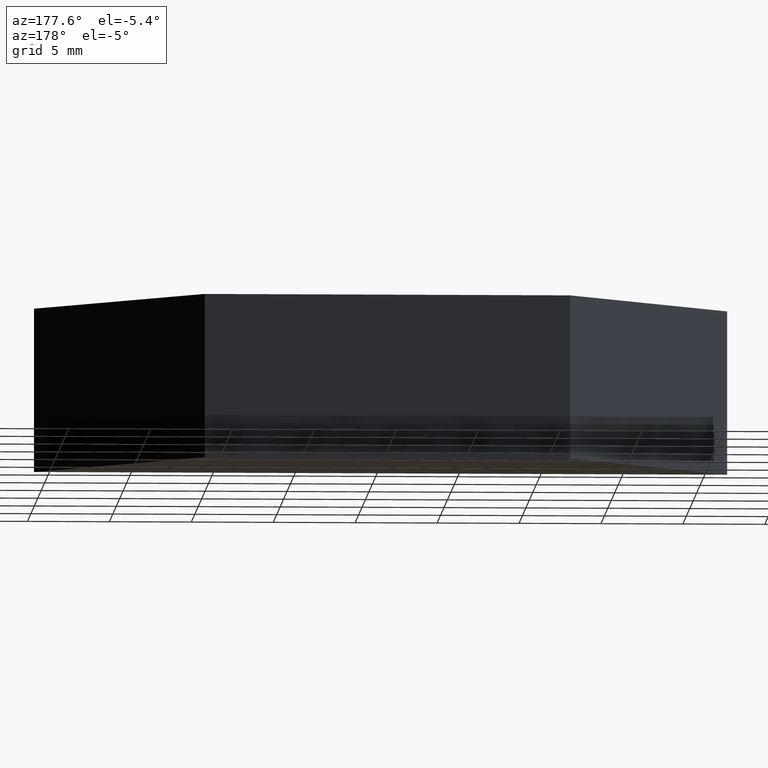
[diagram: clean part render]
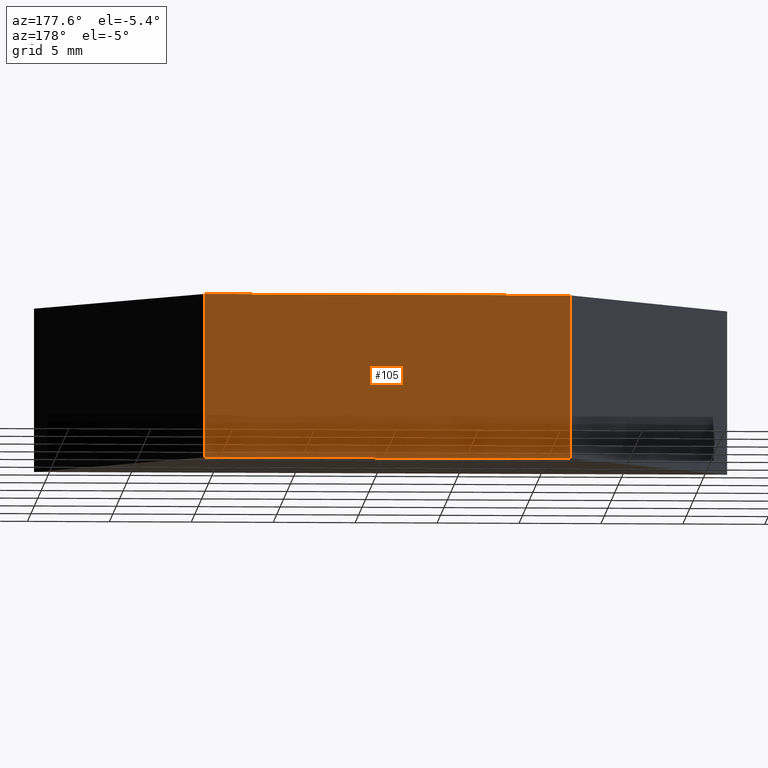
[diagram: same view with one face highlighted and labeled with its STEP entity id]
A machine part, auxiliary view. The second image highlights one B-rep face of the part: STEP entity #105.
In plain terms, the highlighted planar face has unit normal (0, -1, 0).
Its self-contained STEP definition (entity closure, byte-faithful):
#11 = VERTEX_POINT ( 'NONE', #163 ) ;
#12 = EDGE_CURVE ( 'NONE', #52, #11, #134, .T. ) ;
#16 = CARTESIAN_POINT ( 'NONE',  ( 70.64353380175859300, 59.92210381883445100, 10.00000000000000000 ) ) ;
#18 = DIRECTION ( 'NONE',  ( -0.0000000000000000000, -0.0000000000000000000, -1.000000000000000000 ) ) ;
#35 = VECTOR ( 'NONE', #289, 1000.000000000000000 ) ;
#52 = VERTEX_POINT ( 'NONE', #16 ) ;
#54 = ORIENTED_EDGE ( 'NONE', *, *, #84, .T. ) ;
#73 = EDGE_CURVE ( 'NONE', #11, #302, #201, .T. ) ;
#74 = VECTOR ( 'NONE', #18, 1000.000000000000000 ) ;
#84 = EDGE_CURVE ( 'NONE', #52, #295, #208, .T. ) ;
#86 = CARTESIAN_POINT ( 'NONE',  ( 70.64353380175859300, 59.92210381883445100, 0.0000000000000000000 ) ) ;
#87 = FACE_OUTER_BOUND ( 'NONE', #196, .T. ) ;
#105 = ADVANCED_FACE ( 'NONE', ( #87 ), #157, .F. ) ;
#121 = VECTOR ( 'NONE', #138, 1000.000000000000000 ) ;
#134 = LINE ( 'NONE', #282, #121 ) ;
#138 = DIRECTION ( 'NONE',  ( -1.000000000000000000, -0.0000000000000000000, -0.0000000000000000000 ) ) ;
#153 = LINE ( 'NONE', #170, #35 ) ;
#157 = PLANE ( 'NONE',  #256 ) ;
#159 = CARTESIAN_POINT ( 'NONE',  ( 48.34353380175868900, 59.92210381883445100, 10.00000000000000000 ) ) ;
#163 = CARTESIAN_POINT ( 'NONE',  ( 48.34353380175868900, 59.92210381883445100, 10.00000000000000000 ) ) ;
#165 = DIRECTION ( 'NONE',  ( 0.0000000000000000000, -0.0000000000000000000, -1.000000000000000000 ) ) ;
#170 = CARTESIAN_POINT ( 'NONE',  ( 48.34353380175868900, 59.92210381883445100, 0.0000000000000000000 ) ) ;
#179 = ORIENTED_EDGE ( 'NONE', *, *, #281, .T. ) ;
#183 = CARTESIAN_POINT ( 'NONE',  ( 48.34353380175868900, 59.92210381883445100, 10.00000000000000000 ) ) ;
#187 = DIRECTION ( 'NONE',  ( -0.0000000000000000000, -0.0000000000000000000, -1.000000000000000000 ) ) ;
#189 = CARTESIAN_POINT ( 'NONE',  ( 48.34353380175868900, 59.92210381883445100, 0.0000000000000000000 ) ) ;
#196 = EDGE_LOOP ( 'NONE', ( #179, #229, #240, #54 ) ) ;
#201 = LINE ( 'NONE', #159, #269 ) ;
#208 = LINE ( 'NONE', #213, #74 ) ;
#209 = DIRECTION ( 'NONE',  ( 0.0000000000000000000, -1.000000000000000000, 0.0000000000000000000 ) ) ;
#213 = CARTESIAN_POINT ( 'NONE',  ( 70.64353380175859300, 59.92210381883445100, 10.00000000000000000 ) ) ;
#229 = ORIENTED_EDGE ( 'NONE', *, *, #73, .F. ) ;
#240 = ORIENTED_EDGE ( 'NONE', *, *, #12, .F. ) ;
#256 = AXIS2_PLACEMENT_3D ( 'NONE', #183, #209, #165 ) ;
#269 = VECTOR ( 'NONE', #187, 1000.000000000000000 ) ;
#281 = EDGE_CURVE ( 'NONE', #295, #302, #153, .T. ) ;
#282 = CARTESIAN_POINT ( 'NONE',  ( 48.34353380175868900, 59.92210381883445100, 10.00000000000000000 ) ) ;
#289 = DIRECTION ( 'NONE',  ( -1.000000000000000000, -0.0000000000000000000, -0.0000000000000000000 ) ) ;
#295 = VERTEX_POINT ( 'NONE', #86 ) ;
#302 = VERTEX_POINT ( 'NONE', #189 ) ;